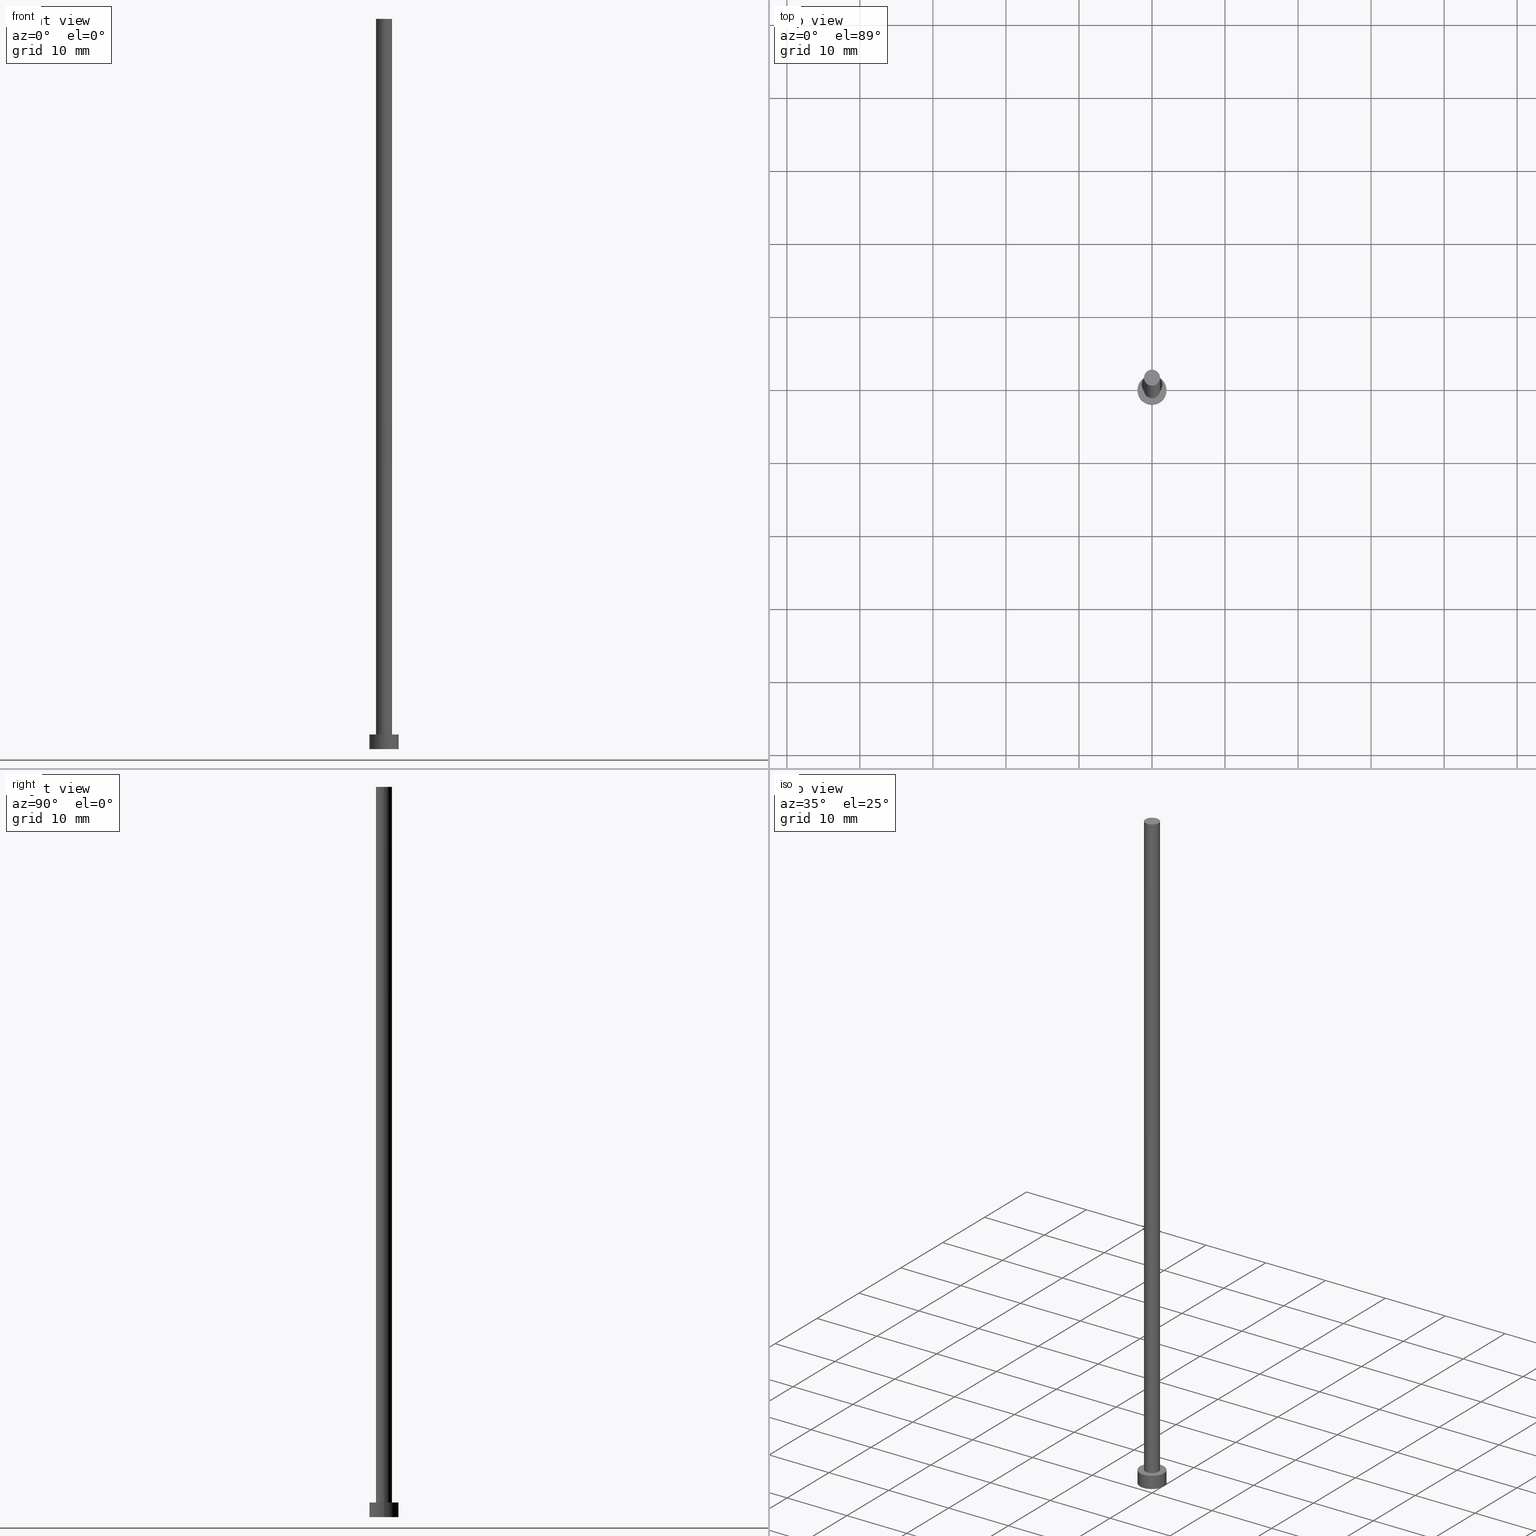
[diagram: canonical four-view strip — front | top / right | iso, engineering-drawing reading convention]
A machine part, canonical four-view strip (front | top / right | iso — engineering-drawing reading convention). The complete STEP part file that produces these views, byte-faithful:
ISO-10303-21;
HEADER;
FILE_DESCRIPTION (( 'STEP AP203' ),
    '1' );
FILE_NAME ('4169.STEP',
    '2023-02-12T12:51:16',
    ( '' ),
    ( '' ),
    'SwSTEP 2.0',
    'SolidWorks 2019',
    '' );
FILE_SCHEMA (( 'CONFIG_CONTROL_DESIGN' ));
ENDSEC;

DATA;
#1 = VECTOR ( 'NONE', #70, 1000.000000000000000 ) ;
#2 = DIRECTION ( 'NONE',  ( -0.000000000000000000, -0.000000000000000000, -1.000000000000000000 ) ) ;
#3 = CARTESIAN_POINT ( 'NONE',  ( 0.000000000000000000, 0.000000000000000000, 100.0000000000000000 ) ) ;
#4 = APPROVAL_PERSON_ORGANIZATION ( #211, #249, #47 ) ;
#5 = CIRCLE ( 'NONE', #73, 1.100000000000000089 ) ;
#6 = CARTESIAN_POINT ( 'NONE',  ( 2.000000000000000000, 2.449293598294706414E-16, 2.000000000000000000 ) ) ;
#7 = CARTESIAN_POINT ( 'NONE',  ( 1.100000000000000089, 1.347111479062088503E-16, 100.0000000000000000 ) ) ;
#8 = CC_DESIGN_APPROVAL ( #249, ( #131 ) ) ;
#9 = VERTEX_POINT ( 'NONE', #91 ) ;
#10 = ORIENTED_EDGE ( 'NONE', *, *, #69, .F. ) ;
#11 = PERSON_AND_ORGANIZATION_ROLE ( 'classification_officer' ) ;
#12 = EDGE_LOOP ( 'NONE', ( #20, #188, #183, #209 ) ) ;
#13 = DIRECTION ( 'NONE',  ( 1.000000000000000000, 0.000000000000000000, 0.000000000000000000 ) ) ;
#14 = DATE_AND_TIME ( #194, #52 ) ;
#15 = DIRECTION ( 'NONE',  ( -0.000000000000000000, -0.000000000000000000, -1.000000000000000000 ) ) ;
#16 = CIRCLE ( 'NONE', #253, 1.100000000000000089 ) ;
#17 = ADVANCED_FACE ( 'NONE', ( #116 ), #74, .F. ) ;
#18 = CARTESIAN_POINT ( 'NONE',  ( -2.000000000000000000, 0.000000000000000000, 2.000000000000000000 ) ) ;
#19 = DIRECTION ( 'NONE',  ( 0.000000000000000000, 0.000000000000000000, 1.000000000000000000 ) ) ;
#20 = ORIENTED_EDGE ( 'NONE', *, *, #233, .F. ) ;
#21 =( NAMED_UNIT ( * ) SI_UNIT ( $, .STERADIAN. ) SOLID_ANGLE_UNIT ( ) );
#22 = ORIENTED_EDGE ( 'NONE', *, *, #95, .F. ) ;
#23 = CARTESIAN_POINT ( 'NONE',  ( 0.000000000000000000, 0.000000000000000000, 2.000000000000000000 ) ) ;
#24 = VERTEX_POINT ( 'NONE', #182 ) ;
#25 = APPROVAL ( #226, 'NEUR�EN�' ) ;
#26 = VERTEX_POINT ( 'NONE', #7 ) ;
#27 = ORGANIZATION ( 'NEUR�EN�', 'NEUR�EN�', '' ) ;
#28 = PLANE ( 'NONE',  #167 ) ;
#29 = COORDINATED_UNIVERSAL_TIME_OFFSET ( 1, 0, .AHEAD. ) ;
#30 = DIRECTION ( 'NONE',  ( 0.000000000000000000, 0.000000000000000000, 1.000000000000000000 ) ) ;
#31 = APPROVAL_STATUS ( 'not_yet_approved' ) ;
#32 = CYLINDRICAL_SURFACE ( 'NONE', #230, 1.100000000000000089 ) ;
#33 = EDGE_CURVE ( 'NONE', #186, #250, #5, .T. ) ;
#34 = ADVANCED_FACE ( 'NONE', ( #51 ), #28, .T. ) ;
#35 = CYLINDRICAL_SURFACE ( 'NONE', #149, 2.000000000000000000 ) ;
#36 = LOCAL_TIME ( 13, 51, 16.00000000000000000, #158 ) ;
#37 = FACE_OUTER_BOUND ( 'NONE', #227, .T. ) ;
#38 = VERTEX_POINT ( 'NONE', #234 ) ;
#39 = CIRCLE ( 'NONE', #221, 2.000000000000000000 ) ;
#40 = CARTESIAN_POINT ( 'NONE',  ( 0.000000000000000000, 0.000000000000000000, 2.000000000000000000 ) ) ;
#41 = ORIENTED_EDGE ( 'NONE', *, *, #252, .F. ) ;
#42 = CARTESIAN_POINT ( 'NONE',  ( 0.000000000000000000, 0.000000000000000000, 2.000000000000000000 ) ) ;
#43 = ADVANCED_FACE ( 'NONE', ( #56 ), #32, .T. ) ;
#44 = APPROVAL_ROLE ( '' ) ;
#45 = DATE_AND_TIME ( #143, #84 ) ;
#46 = EDGE_LOOP ( 'NONE', ( #144, #88 ) ) ;
#47 = APPROVAL_ROLE ( '' ) ;
#48 = DIRECTION ( 'NONE',  ( 0.000000000000000000, 0.000000000000000000, 1.000000000000000000 ) ) ;
#49 = ADVANCED_FACE ( 'NONE', ( #178 ), #179, .T. ) ;
#50 = DESIGN_CONTEXT ( 'detailed design', #254, 'design' ) ;
#51 = FACE_OUTER_BOUND ( 'NONE', #46, .T. ) ;
#52 = LOCAL_TIME ( 13, 51, 16.00000000000000000, #107 ) ;
#53 = APPROVAL_DATE_TIME ( #232, #113 ) ;
#54 = CIRCLE ( 'NONE', #93, 1.100000000000000089 ) ;
#55 = PERSON_AND_ORGANIZATION ( #168, #27 ) ;
#56 = FACE_OUTER_BOUND ( 'NONE', #159, .T. ) ;
#57 = CALENDAR_DATE ( 2023, 12, 2 ) ;
#58 = DIRECTION ( 'NONE',  ( -1.000000000000000000, 0.000000000000000000, 0.000000000000000000 ) ) ;
#59 = CC_DESIGN_DATE_AND_TIME_ASSIGNMENT ( #127, #170, ( #131 ) ) ;
#60 = DIRECTION ( 'NONE',  ( 0.000000000000000000, 0.000000000000000000, 1.000000000000000000 ) ) ;
#61 = CARTESIAN_POINT ( 'NONE',  ( 0.000000000000000000, 0.000000000000000000, 100.0000000000000000 ) ) ;
#62 = CC_DESIGN_PERSON_AND_ORGANIZATION_ASSIGNMENT ( #214, #11, ( #131 ) ) ;
#63 = CARTESIAN_POINT ( 'NONE',  ( -1.100000000000000089, 0.000000000000000000, 100.0000000000000000 ) ) ;
#64 = DIRECTION ( 'NONE',  ( 1.000000000000000000, 0.000000000000000000, 0.000000000000000000 ) ) ;
#65 = DATE_AND_TIME ( #242, #36 ) ;
#66 = CIRCLE ( 'NONE', #238, 2.000000000000000000 ) ;
#67 = PERSON_AND_ORGANIZATION ( #168, #27 ) ;
#68 = ORIENTED_EDGE ( 'NONE', *, *, #252, .T. ) ;
#69 = EDGE_CURVE ( 'NONE', #24, #250, #132, .T. ) ;
#70 = DIRECTION ( 'NONE',  ( -0.000000000000000000, -0.000000000000000000, -1.000000000000000000 ) ) ;
#71 = ORIENTED_EDGE ( 'NONE', *, *, #33, .T. ) ;
#72 = COORDINATED_UNIVERSAL_TIME_OFFSET ( 1, 0, .AHEAD. ) ;
#73 = AXIS2_PLACEMENT_3D ( 'NONE', #148, #48, #13 ) ;
#74 = PLANE ( 'NONE',  #85 ) ;
#75 = APPROVAL_STATUS ( 'not_yet_approved' ) ;
#76 = APPLICATION_CONTEXT ( 'configuration controlled 3d designs of mechanical parts and assemblies' ) ;
#77 = CARTESIAN_POINT ( 'NONE',  ( 0.000000000000000000, 0.000000000000000000, 100.0000000000000000 ) ) ;
#78 = PRODUCT_DEFINITION ( 'NEZN�M�', '', #96, #50 ) ;
#79 = DIRECTION ( 'NONE',  ( 0.000000000000000000, 0.000000000000000000, 1.000000000000000000 ) ) ;
#80 = DIRECTION ( 'NONE',  ( 0.000000000000000000, 0.000000000000000000, 1.000000000000000000 ) ) ;
#81 = CC_DESIGN_PERSON_AND_ORGANIZATION_ASSIGNMENT ( #236, #126, ( #96 ) ) ;
#82 = CARTESIAN_POINT ( 'NONE',  ( 0.000000000000000000, 0.000000000000000000, 100.0000000000000000 ) ) ;
#83 = DIRECTION ( 'NONE',  ( 0.000000000000000000, 0.000000000000000000, 1.000000000000000000 ) ) ;
#84 = LOCAL_TIME ( 13, 51, 16.00000000000000000, #72 ) ;
#85 = AXIS2_PLACEMENT_3D ( 'NONE', #146, #19, #99 ) ;
#86 = DIRECTION ( 'NONE',  ( 1.000000000000000000, 0.000000000000000000, 0.000000000000000000 ) ) ;
#87 = PERSON_AND_ORGANIZATION ( #168, #27 ) ;
#88 = ORIENTED_EDGE ( 'NONE', *, *, #95, .T. ) ;
#89 = APPLICATION_PROTOCOL_DEFINITION ( 'international standard', 'config_control_design', 1994, #76 ) ;
#90 = ORIENTED_EDGE ( 'NONE', *, *, #33, .F. ) ;
#91 = CARTESIAN_POINT ( 'NONE',  ( -2.000000000000000000, 0.000000000000000000, 0.000000000000000000 ) ) ;
#92 = CIRCLE ( 'NONE', #193, 2.000000000000000000 ) ;
#93 = AXIS2_PLACEMENT_3D ( 'NONE', #3, #83, #157 ) ;
#94 = APPROVAL_DATE_TIME ( #14, #249 ) ;
#95 = EDGE_CURVE ( 'NONE', #26, #24, #54, .T. ) ;
#96 = PRODUCT_DEFINITION_FORMATION_WITH_SPECIFIED_SOURCE ( 'LIBOVOLN�', '', #112, .NOT_KNOWN. ) ;
#97 = CLOSED_SHELL ( 'NONE', ( #43, #200, #174, #169, #17, #49, #34 ) ) ;
#98 = CIRCLE ( 'NONE', #154, 2.000000000000000000 ) ;
#99 = DIRECTION ( 'NONE',  ( 1.000000000000000000, 0.000000000000000000, -0.000000000000000000 ) ) ;
#100 = DIRECTION ( 'NONE',  ( 1.000000000000000000, 0.000000000000000000, 0.000000000000000000 ) ) ;
#101 = CARTESIAN_POINT ( 'NONE',  ( 0.000000000000000000, 0.000000000000000000, 0.000000000000000000 ) ) ;
#102 = DIRECTION ( 'NONE',  ( 1.000000000000000000, 0.000000000000000000, 0.000000000000000000 ) ) ;
#103 = PERSON_AND_ORGANIZATION ( #168, #27 ) ;
#104 = ORIENTED_EDGE ( 'NONE', *, *, #145, .F. ) ;
#105 = APPROVAL_ROLE ( '' ) ;
#106 = VECTOR ( 'NONE', #115, 1000.000000000000000 ) ;
#107 = COORDINATED_UNIVERSAL_TIME_OFFSET ( 1, 0, .AHEAD. ) ;
#108 = CARTESIAN_POINT ( 'NONE',  ( 0.000000000000000000, 0.000000000000000000, 100.0000000000000000 ) ) ;
#109 = DIRECTION ( 'NONE',  ( 1.000000000000000000, 0.000000000000000000, -0.000000000000000000 ) ) ;
#110 = LOCAL_TIME ( 13, 51, 16.00000000000000000, #29 ) ;
#111 = EDGE_CURVE ( 'NONE', #24, #26, #215, .T. ) ;
#112 = PRODUCT ( '4169', '4169', '', ( #245 ) ) ;
#113 = APPROVAL ( #75, 'NEUR�EN�' ) ;
#114 = DIRECTION ( 'NONE',  ( -1.000000000000000000, 0.000000000000000000, 0.000000000000000000 ) ) ;
#115 = DIRECTION ( 'NONE',  ( -0.000000000000000000, -0.000000000000000000, -1.000000000000000000 ) ) ;
#116 = FACE_OUTER_BOUND ( 'NONE', #121, .T. ) ;
#117 = DIRECTION ( 'NONE',  ( 0.000000000000000000, 0.000000000000000000, 1.000000000000000000 ) ) ;
#118 = VERTEX_POINT ( 'NONE', #6 ) ;
#119 = CC_DESIGN_PERSON_AND_ORGANIZATION_ASSIGNMENT ( #124, #151, ( #96 ) ) ;
#120 = CARTESIAN_POINT ( 'NONE',  ( -1.100000000000000089, 0.000000000000000000, 2.000000000000000000 ) ) ;
#121 = EDGE_LOOP ( 'NONE', ( #160, #104 ) ) ;
#122 = APPROVAL_DATE_TIME ( #45, #25 ) ;
#123 = ORIENTED_EDGE ( 'NONE', *, *, #217, .F. ) ;
#124 = PERSON_AND_ORGANIZATION ( #168, #27 ) ;
#125 = LOCAL_TIME ( 13, 51, 16.00000000000000000, #165 ) ;
#126 = PERSON_AND_ORGANIZATION_ROLE ( 'design_supplier' ) ;
#127 = DATE_AND_TIME ( #57, #110 ) ;
#128 = CARTESIAN_POINT ( 'NONE',  ( 1.100000000000000089, 1.347111479062088503E-16, 2.000000000000000000 ) ) ;
#129 = CARTESIAN_POINT ( 'NONE',  ( 0.000000000000000000, 0.000000000000000000, 2.000000000000000000 ) ) ;
#130 = FACE_OUTER_BOUND ( 'NONE', #12, .T. ) ;
#131 = SECURITY_CLASSIFICATION ( '', '', #191 ) ;
#132 = LINE ( 'NONE', #63, #202 ) ;
#133 = CC_DESIGN_PERSON_AND_ORGANIZATION_ASSIGNMENT ( #67, #185, ( #112 ) ) ;
#134 = FACE_BOUND ( 'NONE', #140, .T. ) ;
#135 =( LENGTH_UNIT ( ) NAMED_UNIT ( * ) SI_UNIT ( .MILLI., .METRE. ) );
#136 = EDGE_CURVE ( 'NONE', #26, #186, #177, .T. ) ;
#137 =( GEOMETRIC_REPRESENTATION_CONTEXT ( 3 ) GLOBAL_UNCERTAINTY_ASSIGNED_CONTEXT ( ( #192 ) ) GLOBAL_UNIT_ASSIGNED_CONTEXT ( ( #135, #189, #21 ) ) REPRESENTATION_CONTEXT ( 'NONE', 'WORKASPACE' ) );
#138 = PERSON_AND_ORGANIZATION_ROLE ( 'creator' ) ;
#139 = DIRECTION ( 'NONE',  ( 0.000000000000000000, 0.000000000000000000, 1.000000000000000000 ) ) ;
#140 = EDGE_LOOP ( 'NONE', ( #248, #90 ) ) ;
#141 = DIRECTION ( 'NONE',  ( 1.000000000000000000, 0.000000000000000000, 0.000000000000000000 ) ) ;
#142 = ORIENTED_EDGE ( 'NONE', *, *, #136, .F. ) ;
#143 = CALENDAR_DATE ( 2023, 12, 2 ) ;
#144 = ORIENTED_EDGE ( 'NONE', *, *, #111, .T. ) ;
#145 = EDGE_CURVE ( 'NONE', #38, #9, #98, .T. ) ;
#146 = CARTESIAN_POINT ( 'NONE',  ( 0.000000000000000000, 0.000000000000000000, 0.000000000000000000 ) ) ;
#147 = PRODUCT_RELATED_PRODUCT_CATEGORY ( 'detail', '', ( #112 ) ) ;
#148 = CARTESIAN_POINT ( 'NONE',  ( 0.000000000000000000, 0.000000000000000000, 2.000000000000000000 ) ) ;
#149 = AXIS2_PLACEMENT_3D ( 'NONE', #42, #207, #181 ) ;
#150 = VECTOR ( 'NONE', #2, 1000.000000000000000 ) ;
#151 = PERSON_AND_ORGANIZATION_ROLE ( 'creator' ) ;
#152 = CARTESIAN_POINT ( 'NONE',  ( 0.000000000000000000, 0.000000000000000000, 2.000000000000000000 ) ) ;
#153 = DIRECTION ( 'NONE',  ( 0.000000000000000000, 0.000000000000000000, 1.000000000000000000 ) ) ;
#154 = AXIS2_PLACEMENT_3D ( 'NONE', #156, #80, #219 ) ;
#155 = DIRECTION ( 'NONE',  ( 1.000000000000000000, 0.000000000000000000, -0.000000000000000000 ) ) ;
#156 = CARTESIAN_POINT ( 'NONE',  ( 0.000000000000000000, 0.000000000000000000, 0.000000000000000000 ) ) ;
#157 = DIRECTION ( 'NONE',  ( 1.000000000000000000, 0.000000000000000000, 0.000000000000000000 ) ) ;
#158 = COORDINATED_UNIVERSAL_TIME_OFFSET ( 1, 0, .AHEAD. ) ;
#159 = EDGE_LOOP ( 'NONE', ( #22, #247, #71, #10 ) ) ;
#160 = ORIENTED_EDGE ( 'NONE', *, *, #195, .F. ) ;
#161 = LINE ( 'NONE', #163, #106 ) ;
#162 = PRODUCT_DEFINITION_SHAPE ( 'NONE', 'NONE',  #78 ) ;
#163 = CARTESIAN_POINT ( 'NONE',  ( 2.000000000000000000, 2.449293598294706414E-16, 2.000000000000000000 ) ) ;
#164 = VERTEX_POINT ( 'NONE', #175 ) ;
#165 = COORDINATED_UNIVERSAL_TIME_OFFSET ( 1, 0, .AHEAD. ) ;
#166 = ORIENTED_EDGE ( 'NONE', *, *, #111, .F. ) ;
#167 = AXIS2_PLACEMENT_3D ( 'NONE', #108, #30, #109 ) ;
#168 = PERSON ( 'NEUR�EN�', 'NEUR�EN�', 'NEUR�EN�', ('NEUR�EN�'), ('NEUR�EN�'), ('NEUR�EN�') ) ;
#169 = ADVANCED_FACE ( 'NONE', ( #134, #216 ), #199, .T. ) ;
#170 = DATE_TIME_ROLE ( 'classification_date' ) ;
#171 = CALENDAR_DATE ( 2023, 12, 2 ) ;
#172 = SHAPE_DEFINITION_REPRESENTATION ( #162, #255 ) ;
#173 = AXIS2_PLACEMENT_3D ( 'NONE', #101, #139, #141 ) ;
#174 = ADVANCED_FACE ( 'NONE', ( #37 ), #239, .T. ) ;
#175 = CARTESIAN_POINT ( 'NONE',  ( -2.000000000000000000, 0.000000000000000000, 2.000000000000000000 ) ) ;
#176 = APPROVAL_PERSON_ORGANIZATION ( #87, #25, #44 ) ;
#177 = LINE ( 'NONE', #240, #150 ) ;
#178 = FACE_OUTER_BOUND ( 'NONE', #190, .T. ) ;
#179 = CYLINDRICAL_SURFACE ( 'NONE', #223, 1.100000000000000089 ) ;
#180 = DIRECTION ( 'NONE',  ( -0.000000000000000000, -0.000000000000000000, -1.000000000000000000 ) ) ;
#181 = DIRECTION ( 'NONE',  ( -1.000000000000000000, 0.000000000000000000, 0.000000000000000000 ) ) ;
#182 = CARTESIAN_POINT ( 'NONE',  ( -1.100000000000000089, 0.000000000000000000, 100.0000000000000000 ) ) ;
#183 = ORIENTED_EDGE ( 'NONE', *, *, #145, .T. ) ;
#184 = CC_DESIGN_SECURITY_CLASSIFICATION ( #131, ( #96 ) ) ;
#185 = PERSON_AND_ORGANIZATION_ROLE ( 'design_owner' ) ;
#186 = VERTEX_POINT ( 'NONE', #128 ) ;
#187 = CARTESIAN_POINT ( 'NONE',  ( 0.000000000000000000, 0.000000000000000000, 2.000000000000000000 ) ) ;
#188 = ORIENTED_EDGE ( 'NONE', *, *, #217, .T. ) ;
#189 =( NAMED_UNIT ( * ) PLANE_ANGLE_UNIT ( ) SI_UNIT ( $, .RADIAN. ) );
#190 = EDGE_LOOP ( 'NONE', ( #142, #166, #251, #225 ) ) ;
#191 = SECURITY_CLASSIFICATION_LEVEL ( 'unclassified' ) ;
#192 = UNCERTAINTY_MEASURE_WITH_UNIT (LENGTH_MEASURE( 1.000000000000000082E-05 ), #135, 'distance_accuracy_value', 'NONE');
#193 = AXIS2_PLACEMENT_3D ( 'NONE', #187, #208, #100 ) ;
#194 = CALENDAR_DATE ( 2023, 12, 2 ) ;
#195 = EDGE_CURVE ( 'NONE', #9, #38, #39, .T. ) ;
#196 = CARTESIAN_POINT ( 'NONE',  ( 0.000000000000000000, 0.000000000000000000, 0.000000000000000000 ) ) ;
#197 = DIRECTION ( 'NONE',  ( -0.000000000000000000, -0.000000000000000000, -1.000000000000000000 ) ) ;
#198 = MANIFOLD_SOLID_BREP ( 'P�idat vysunut�m3', #97 ) ;
#199 = PLANE ( 'NONE',  #246 ) ;
#200 = ADVANCED_FACE ( 'NONE', ( #130 ), #35, .T. ) ;
#201 = AXIS2_PLACEMENT_3D ( 'NONE', #152, #237, #58 ) ;
#202 = VECTOR ( 'NONE', #15, 1000.000000000000000 ) ;
#203 = ORIENTED_EDGE ( 'NONE', *, *, #233, .T. ) ;
#204 = LINE ( 'NONE', #18, #1 ) ;
#205 = EDGE_LOOP ( 'NONE', ( #68, #203 ) ) ;
#206 = ORIENTED_EDGE ( 'NONE', *, *, #235, .T. ) ;
#207 = DIRECTION ( 'NONE',  ( -0.000000000000000000, -0.000000000000000000, -1.000000000000000000 ) ) ;
#208 = DIRECTION ( 'NONE',  ( 0.000000000000000000, 0.000000000000000000, 1.000000000000000000 ) ) ;
#209 = ORIENTED_EDGE ( 'NONE', *, *, #235, .F. ) ;
#210 = CC_DESIGN_DATE_AND_TIME_ASSIGNMENT ( #65, #222, ( #78 ) ) ;
#211 = PERSON_AND_ORGANIZATION ( #168, #27 ) ;
#212 = CC_DESIGN_APPROVAL ( #25, ( #78 ) ) ;
#213 = AXIS2_PLACEMENT_3D ( 'NONE', #82, #79, #64 ) ;
#214 = PERSON_AND_ORGANIZATION ( #168, #27 ) ;
#215 = CIRCLE ( 'NONE', #213, 1.100000000000000089 ) ;
#216 = FACE_OUTER_BOUND ( 'NONE', #205, .T. ) ;
#217 = EDGE_CURVE ( 'NONE', #118, #38, #161, .T. ) ;
#218 = DIRECTION ( 'NONE',  ( 1.000000000000000000, 0.000000000000000000, 0.000000000000000000 ) ) ;
#219 = DIRECTION ( 'NONE',  ( 1.000000000000000000, 0.000000000000000000, 0.000000000000000000 ) ) ;
#220 = EDGE_CURVE ( 'NONE', #250, #186, #16, .T. ) ;
#221 = AXIS2_PLACEMENT_3D ( 'NONE', #196, #60, #218 ) ;
#222 = DATE_TIME_ROLE ( 'creation_date' ) ;
#223 = AXIS2_PLACEMENT_3D ( 'NONE', #61, #180, #241 ) ;
#224 = APPLICATION_PROTOCOL_DEFINITION ( 'international standard', 'config_control_design', 1994, #254 ) ;
#225 = ORIENTED_EDGE ( 'NONE', *, *, #220, .T. ) ;
#226 = APPROVAL_STATUS ( 'not_yet_approved' ) ;
#227 = EDGE_LOOP ( 'NONE', ( #123, #41, #206, #229 ) ) ;
#228 = CC_DESIGN_APPROVAL ( #113, ( #96 ) ) ;
#229 = ORIENTED_EDGE ( 'NONE', *, *, #195, .T. ) ;
#230 = AXIS2_PLACEMENT_3D ( 'NONE', #77, #197, #114 ) ;
#231 = CC_DESIGN_PERSON_AND_ORGANIZATION_ASSIGNMENT ( #103, #138, ( #78 ) ) ;
#232 = DATE_AND_TIME ( #171, #125 ) ;
#233 = EDGE_CURVE ( 'NONE', #118, #164, #92, .T. ) ;
#234 = CARTESIAN_POINT ( 'NONE',  ( 2.000000000000000000, 2.449293598294706414E-16, 0.000000000000000000 ) ) ;
#235 = EDGE_CURVE ( 'NONE', #164, #9, #204, .T. ) ;
#236 = PERSON_AND_ORGANIZATION ( #168, #27 ) ;
#237 = DIRECTION ( 'NONE',  ( -0.000000000000000000, -0.000000000000000000, -1.000000000000000000 ) ) ;
#238 = AXIS2_PLACEMENT_3D ( 'NONE', #23, #243, #102 ) ;
#239 = CYLINDRICAL_SURFACE ( 'NONE', #201, 2.000000000000000000 ) ;
#240 = CARTESIAN_POINT ( 'NONE',  ( 1.100000000000000089, 1.347111479062088503E-16, 100.0000000000000000 ) ) ;
#241 = DIRECTION ( 'NONE',  ( -1.000000000000000000, 0.000000000000000000, 0.000000000000000000 ) ) ;
#242 = CALENDAR_DATE ( 2023, 12, 2 ) ;
#243 = DIRECTION ( 'NONE',  ( 0.000000000000000000, 0.000000000000000000, 1.000000000000000000 ) ) ;
#244 = APPROVAL_PERSON_ORGANIZATION ( #55, #113, #105 ) ;
#245 = MECHANICAL_CONTEXT ( 'NONE', #76, 'mechanical' ) ;
#246 = AXIS2_PLACEMENT_3D ( 'NONE', #129, #153, #155 ) ;
#247 = ORIENTED_EDGE ( 'NONE', *, *, #136, .T. ) ;
#248 = ORIENTED_EDGE ( 'NONE', *, *, #220, .F. ) ;
#249 = APPROVAL ( #31, 'NEUR�EN�' ) ;
#250 = VERTEX_POINT ( 'NONE', #120 ) ;
#251 = ORIENTED_EDGE ( 'NONE', *, *, #69, .T. ) ;
#252 = EDGE_CURVE ( 'NONE', #164, #118, #66, .T. ) ;
#253 = AXIS2_PLACEMENT_3D ( 'NONE', #40, #117, #86 ) ;
#254 = APPLICATION_CONTEXT ( 'configuration controlled 3d designs of mechanical parts and assemblies' ) ;
#255 = ADVANCED_BREP_SHAPE_REPRESENTATION ( '4169', ( #198, #173 ), #137 ) ;
ENDSEC;
END-ISO-10303-21;
